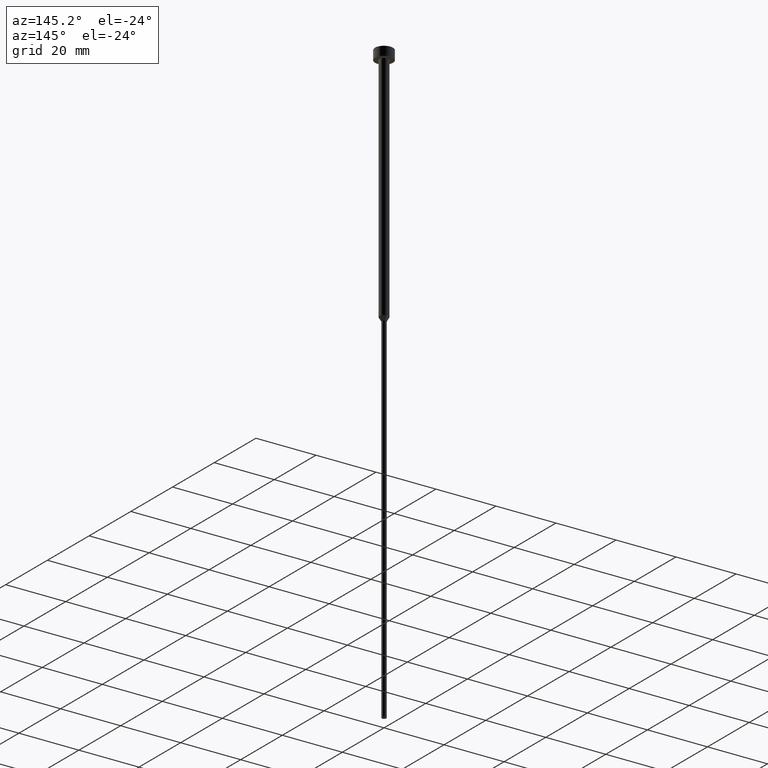
[diagram: clean part render]
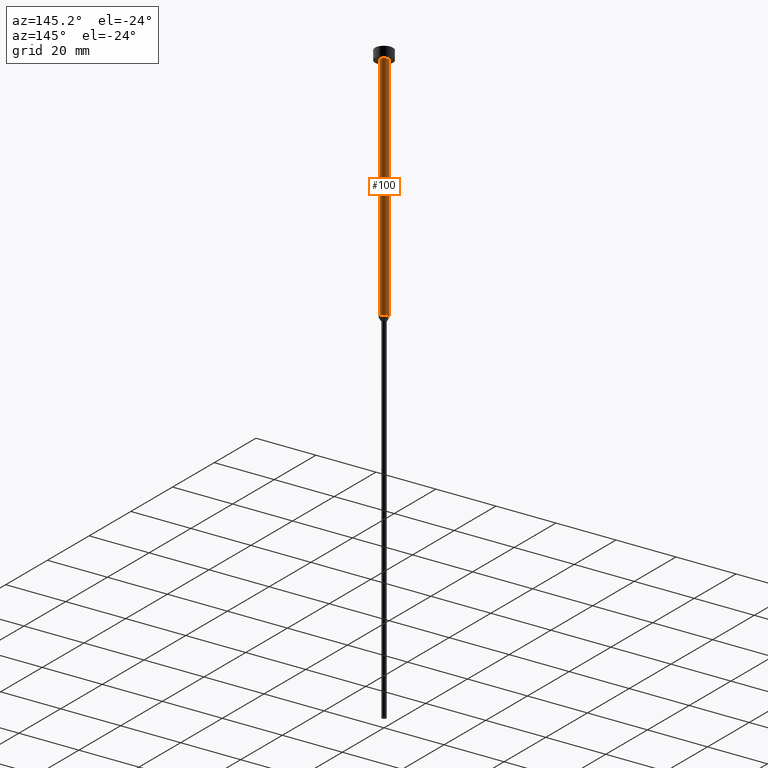
[diagram: same view with one face highlighted and labeled with its STEP entity id]
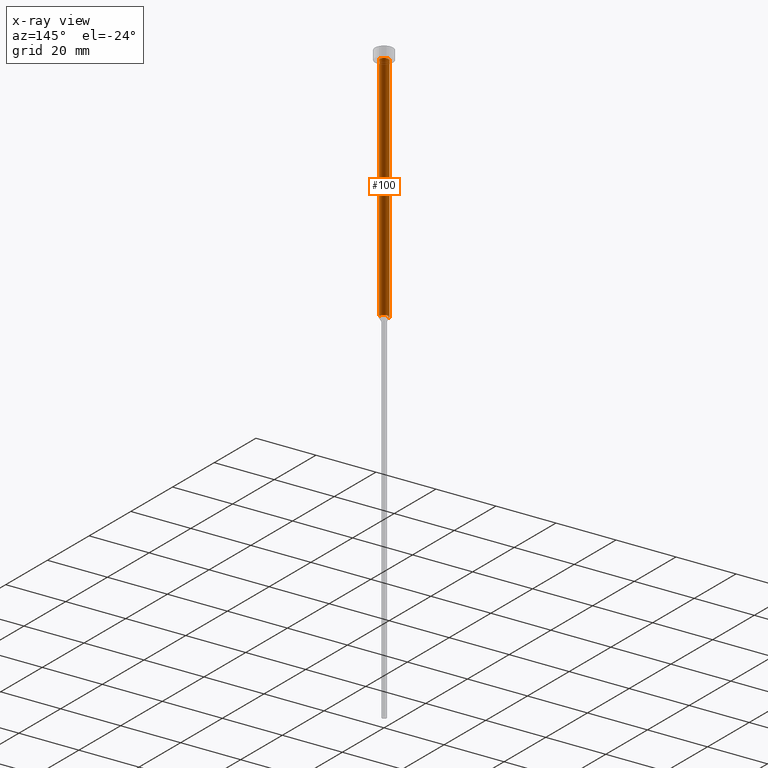
[diagram: x-ray of the same camera — body ghosted, the highlighted face saturated]
A machine part, auxiliary view. The second image highlights one B-rep face of the part: STEP entity #100.
The next image is the same camera in x-ray: the body ghosted, the highlighted face saturated — about 0% of this face is hidden behind the body in this view.
In plain terms, the highlighted cylindrical surface (edge-blend (fillet) strip) has radius 1.5 mm, axis along (-0, -0, 1).
Its self-contained STEP definition (entity closure, byte-faithful):
#11 = CARTESIAN_POINT ( 'NONE',  ( -1.500000000000000000, 1.836970198721029934E-16, -80.00000000000000000 ) ) ;
#24 = CIRCLE ( 'NONE', #40, 1.500000000000000000 ) ;
#34 = CARTESIAN_POINT ( 'NONE',  ( 1.500000000000000000, 0.000000000000000000, -80.00000000000000000 ) ) ;
#40 = AXIS2_PLACEMENT_3D ( 'NONE', #192, #122, #196 ) ;
#43 = FACE_OUTER_BOUND ( 'NONE', #165, .T. ) ;
#52 = DIRECTION ( 'NONE',  ( -0.000000000000000000, -0.000000000000000000, 1.000000000000000000 ) ) ;
#58 = ORIENTED_EDGE ( 'NONE', *, *, #265, .F. ) ;
#63 = VECTOR ( 'NONE', #52, 1000.000000000000000 ) ;
#66 = CARTESIAN_POINT ( 'NONE',  ( -1.500000000000000000, 1.836970198721029934E-16, 0.000000000000000000 ) ) ;
#71 = VERTEX_POINT ( 'NONE', #11 ) ;
#100 = ADVANCED_FACE ( 'NONE', ( #43 ), #270, .T. ) ;
#118 = LINE ( 'NONE', #141, #63 ) ;
#122 = DIRECTION ( 'NONE',  ( -0.000000000000000000, -0.000000000000000000, 1.000000000000000000 ) ) ;
#136 = CIRCLE ( 'NONE', #215, 1.500000000000000000 ) ;
#138 = AXIS2_PLACEMENT_3D ( 'NONE', #296, #167, #275 ) ;
#141 = CARTESIAN_POINT ( 'NONE',  ( 1.500000000000000000, 0.000000000000000000, 0.000000000000000000 ) ) ;
#145 = DIRECTION ( 'NONE',  ( -0.000000000000000000, -0.000000000000000000, 1.000000000000000000 ) ) ;
#147 = EDGE_CURVE ( 'NONE', #206, #71, #24, .T. ) ;
#152 = CARTESIAN_POINT ( 'NONE',  ( -1.500000000000000000, 1.836970198721029934E-16, -3.000000000000000888 ) ) ;
#154 = EDGE_CURVE ( 'NONE', #71, #155, #217, .T. ) ;
#155 = VERTEX_POINT ( 'NONE', #152 ) ;
#165 = EDGE_LOOP ( 'NONE', ( #213, #305, #245, #58 ) ) ;
#167 = DIRECTION ( 'NONE',  ( -0.000000000000000000, -0.000000000000000000, 1.000000000000000000 ) ) ;
#173 = DIRECTION ( 'NONE',  ( -0.000000000000000000, -0.000000000000000000, 1.000000000000000000 ) ) ;
#192 = CARTESIAN_POINT ( 'NONE',  ( 0.000000000000000000, 0.000000000000000000, -80.00000000000000000 ) ) ;
#196 = DIRECTION ( 'NONE',  ( 1.000000000000000000, 0.000000000000000000, 0.000000000000000000 ) ) ;
#199 = VECTOR ( 'NONE', #145, 1000.000000000000000 ) ;
#204 = DIRECTION ( 'NONE',  ( 1.000000000000000000, 0.000000000000000000, 0.000000000000000000 ) ) ;
#206 = VERTEX_POINT ( 'NONE', #34 ) ;
#213 = ORIENTED_EDGE ( 'NONE', *, *, #147, .T. ) ;
#215 = AXIS2_PLACEMENT_3D ( 'NONE', #318, #173, #204 ) ;
#217 = LINE ( 'NONE', #66, #199 ) ;
#229 = EDGE_CURVE ( 'NONE', #246, #155, #136, .T. ) ;
#245 = ORIENTED_EDGE ( 'NONE', *, *, #229, .F. ) ;
#246 = VERTEX_POINT ( 'NONE', #269 ) ;
#265 = EDGE_CURVE ( 'NONE', #206, #246, #118, .T. ) ;
#269 = CARTESIAN_POINT ( 'NONE',  ( 1.500000000000000000, 0.000000000000000000, -3.000000000000000888 ) ) ;
#270 = CYLINDRICAL_SURFACE ( 'NONE', #138, 1.500000000000000000 ) ;
#275 = DIRECTION ( 'NONE',  ( 1.000000000000000000, 0.000000000000000000, 0.000000000000000000 ) ) ;
#296 = CARTESIAN_POINT ( 'NONE',  ( 0.000000000000000000, 0.000000000000000000, 0.000000000000000000 ) ) ;
#305 = ORIENTED_EDGE ( 'NONE', *, *, #154, .T. ) ;
#318 = CARTESIAN_POINT ( 'NONE',  ( 0.000000000000000000, 0.000000000000000000, -3.000000000000000888 ) ) ;